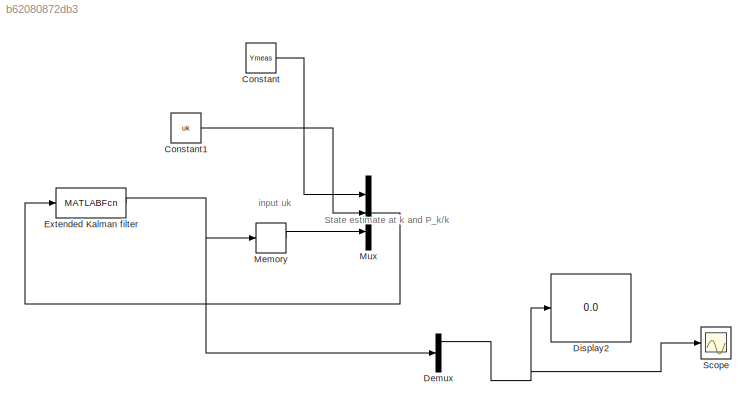
MODEL slx_b62080872db3
KIND model
CONFIG AbsTol = auto
CONFIG FixedStep = auto
CONFIG MaxStep = auto
CONFIG MinStep = auto
CONFIG RelTol = 1e-3
CONFIG SampleTimeConstraint = Unconstrained
CONFIG Solver = VariableStepAuto
CONFIG SolverMode = Auto
CONFIG SolverName = VariableStepAuto
CONFIG StartTime = 0.0
CONFIG StopTime = 10.0
BLOCK [Constant] Constant
  Value = Ymeas
BLOCK [Constant] Constant1
  Value = uk
BLOCK [Demux] Demux
  DisplayOption = bar
  Ports = [1, 4]
BLOCK [Display] Display2
  Decimation = 3
  Ports = [1]
BLOCK [MATLABFcn] Extended Kalman filter
  MATLABFcn = ExKalmanFilter
  OutputDimensions = 12
  Ports = [1, 1]
BLOCK [Memory] Memory
  X0 = Fin(5:end)
BLOCK [Mux] Mux
  DisplayOption = bar
  Inputs = 3
  Ports = [3, 1]
BLOCK [Scope] Scope
  Ports = [1]
  ScopeSpecificationString = Simulink.scopes.TimeScopeBlockCfg('CurrentConfiguration', extmgr.ConfigurationSet(extmgr.Configuration('Core','General UI',true),extmgr.Configuration('Core','Source UI',true),extmgr.Configuration('Sources','WiredSimulink',true),extmgr.Configuration('Visuals','Time Domain',true,'SerializedDisplays',{struct('MinYLimReal','-25.14944','MaxYLimReal','228.481','YLabelReal','','MinYLimMag','0.00000','Max...<+1355ch>
ANNOTATION (root): State estimate at k and P_k/k
ANNOTATION (root): input uk
LINE Constant1:1 -> Mux:2
LINE Constant:1 -> Mux:1
NET Demux:1 -> Display2:1, Scope:1
NET Extended Kalman filter:1 -> Demux:1, Memory:1
LINE Memory:1 -> Mux:3
LINE Mux:1 -> Extended Kalman filter:1
note: NET lines group one-source signal fan-out (src -> all destinations, sorted); 1:1 wires keep LINE
